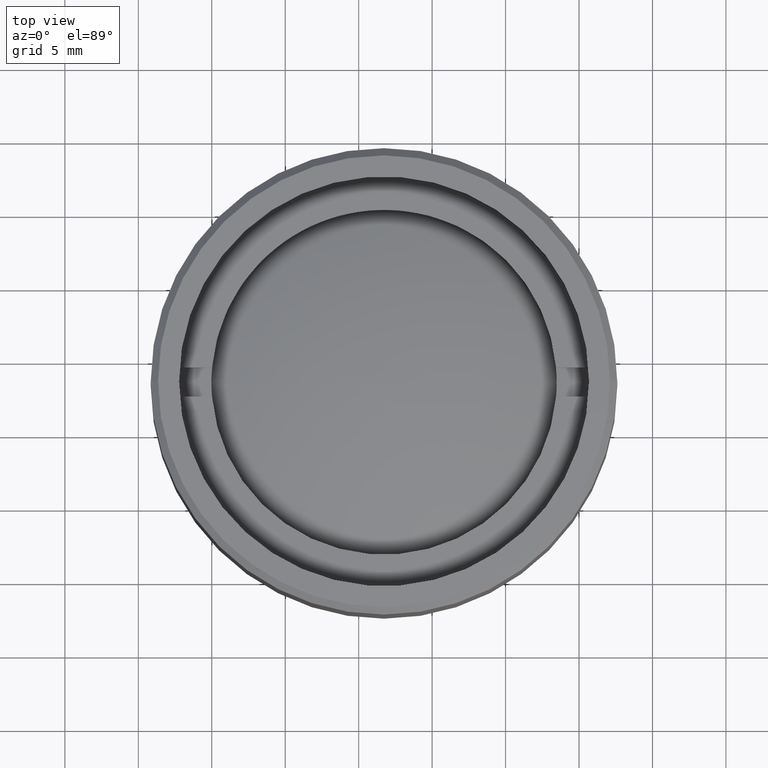
[diagram: clean part render]
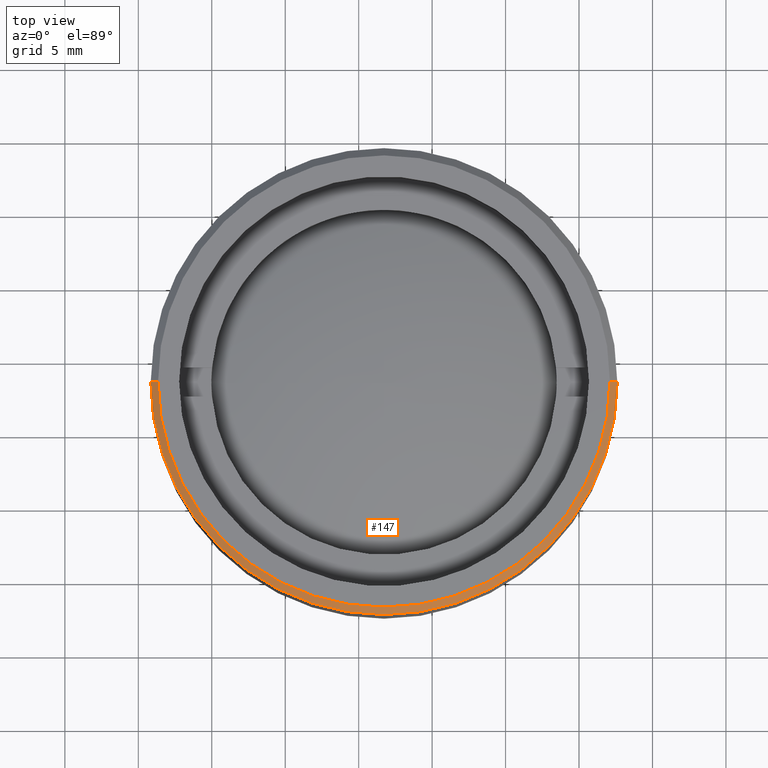
[diagram: same view with one face highlighted and labeled with its STEP entity id]
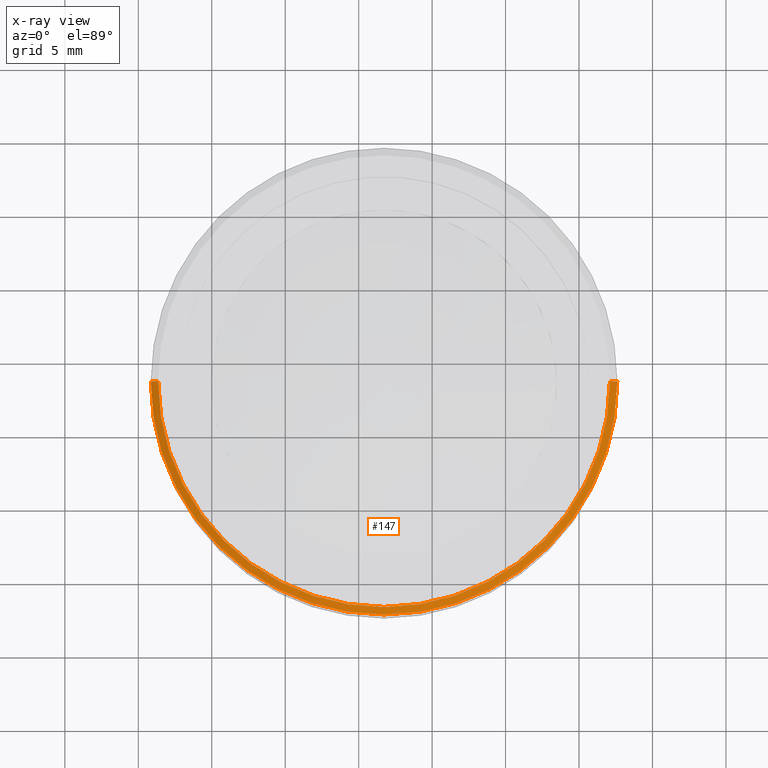
[diagram: x-ray of the same camera — body ghosted, the highlighted face saturated]
A machine part, top view. The second image highlights one B-rep face of the part: STEP entity #147.
The next image is the same camera in x-ray: the body ghosted, the highlighted face saturated — about 0% of this face is hidden behind the body in this view.
In plain terms, the highlighted conical surface has half-angle 45 deg.
Its self-contained STEP definition (entity closure, byte-faithful):
#57 = CARTESIAN_POINT ( 'NONE',  ( 15.37800000000000900, 1.913878017707484038E-15, 21.50000000000000000 ) ) ;
#90 = LINE ( 'NONE', #118, #1435 ) ;
#118 = CARTESIAN_POINT ( 'NONE',  ( -15.37800000000000900, 0.000000000000000000, 21.50000000000000000 ) ) ;
#147 = ADVANCED_FACE ( 'NONE', ( #513 ), #524, .T. ) ;
#276 = LINE ( 'NONE', #1604, #1212 ) ;
#345 = VERTEX_POINT ( 'NONE', #787 ) ;
#386 = AXIS2_PLACEMENT_3D ( 'NONE', #913, #1607, #1593 ) ;
#394 = DIRECTION ( 'NONE',  ( 0.7071067811865376918, 8.659560562354813296E-17, -0.7071067811865574537 ) ) ;
#430 = DIRECTION ( 'NONE',  ( 0.000000000000000000, 0.000000000000000000, 1.000000000000000000 ) ) ;
#437 = CARTESIAN_POINT ( 'NONE',  ( 0.000000000000000000, 0.000000000000000000, 20.99999999999999289 ) ) ;
#447 = DIRECTION ( 'NONE',  ( 1.000000000000000000, 0.000000000000000000, 0.000000000000000000 ) ) ;
#477 = EDGE_LOOP ( 'NONE', ( #556, #757, #1321, #1313 ) ) ;
#513 = FACE_OUTER_BOUND ( 'NONE', #477, .T. ) ;
#524 = CONICAL_SURFACE ( 'NONE', #386, 15.37800000000000900, 0.7853981633974344012 ) ;
#556 = ORIENTED_EDGE ( 'NONE', *, *, #828, .F. ) ;
#559 = DIRECTION ( 'NONE',  ( 1.000000000000000000, 0.000000000000000000, 0.000000000000000000 ) ) ;
#597 = CARTESIAN_POINT ( 'NONE',  ( -15.37800000000000900, 0.000000000000000000, 21.50000000000000000 ) ) ;
#672 = EDGE_CURVE ( 'NONE', #1167, #1654, #90, .T. ) ;
#707 = CARTESIAN_POINT ( 'NONE',  ( -15.87800000000000011, 0.000000000000000000, 20.99999999999999289 ) ) ;
#712 = AXIS2_PLACEMENT_3D ( 'NONE', #1617, #430, #559 ) ;
#734 = CIRCLE ( 'NONE', #712, 15.37800000000000900 ) ;
#757 = ORIENTED_EDGE ( 'NONE', *, *, #1545, .F. ) ;
#787 = CARTESIAN_POINT ( 'NONE',  ( 15.87800000000000011, 1.944494187686167431E-15, 20.99999999999999289 ) ) ;
#805 = CIRCLE ( 'NONE', #1602, 15.87800000000000011 ) ;
#828 = EDGE_CURVE ( 'NONE', #1232, #345, #276, .T. ) ;
#913 = CARTESIAN_POINT ( 'NONE',  ( 0.000000000000000000, 0.000000000000000000, 21.50000000000000000 ) ) ;
#1167 = VERTEX_POINT ( 'NONE', #597 ) ;
#1212 = VECTOR ( 'NONE', #394, 999.9999999999998863 ) ;
#1232 = VERTEX_POINT ( 'NONE', #57 ) ;
#1255 = DIRECTION ( 'NONE',  ( 0.000000000000000000, 0.000000000000000000, -1.000000000000000000 ) ) ;
#1313 = ORIENTED_EDGE ( 'NONE', *, *, #1705, .F. ) ;
#1321 = ORIENTED_EDGE ( 'NONE', *, *, #672, .T. ) ;
#1435 = VECTOR ( 'NONE', #1687, 999.9999999999998863 ) ;
#1545 = EDGE_CURVE ( 'NONE', #1167, #1232, #734, .T. ) ;
#1593 = DIRECTION ( 'NONE',  ( -1.000000000000000000, 0.000000000000000000, 0.000000000000000000 ) ) ;
#1602 = AXIS2_PLACEMENT_3D ( 'NONE', #437, #1255, #447 ) ;
#1604 = CARTESIAN_POINT ( 'NONE',  ( 15.37800000000000900, 1.883261847728801040E-15, 21.50000000000000000 ) ) ;
#1607 = DIRECTION ( 'NONE',  ( 0.000000000000000000, 0.000000000000000000, -1.000000000000000000 ) ) ;
#1617 = CARTESIAN_POINT ( 'NONE',  ( 0.000000000000000000, 0.000000000000000000, 21.50000000000000000 ) ) ;
#1654 = VERTEX_POINT ( 'NONE', #707 ) ;
#1687 = DIRECTION ( 'NONE',  ( -0.7071067811865376918, 0.000000000000000000, -0.7071067811865574537 ) ) ;
#1705 = EDGE_CURVE ( 'NONE', #345, #1654, #805, .T. ) ;